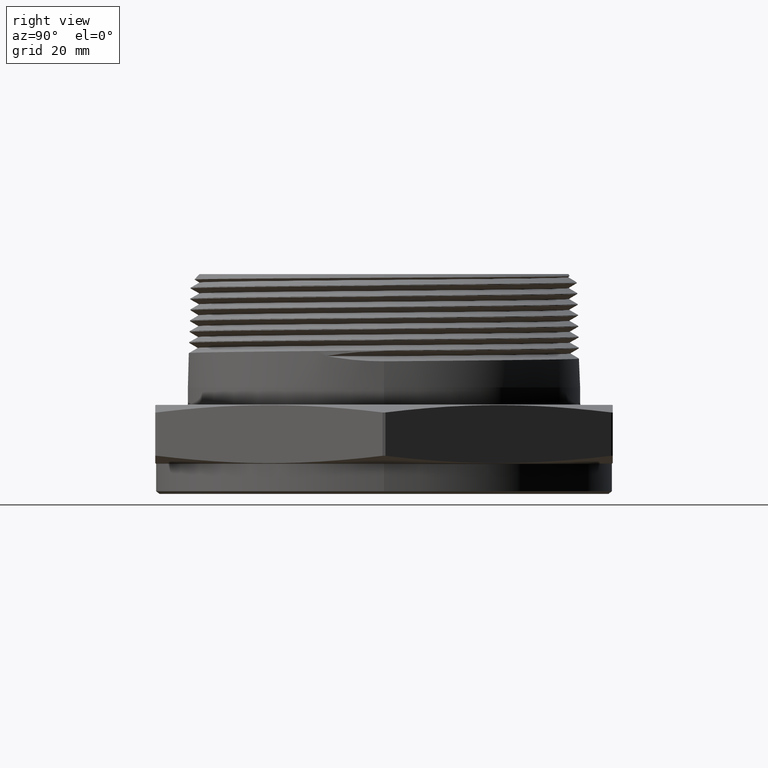
[diagram: clean part render]
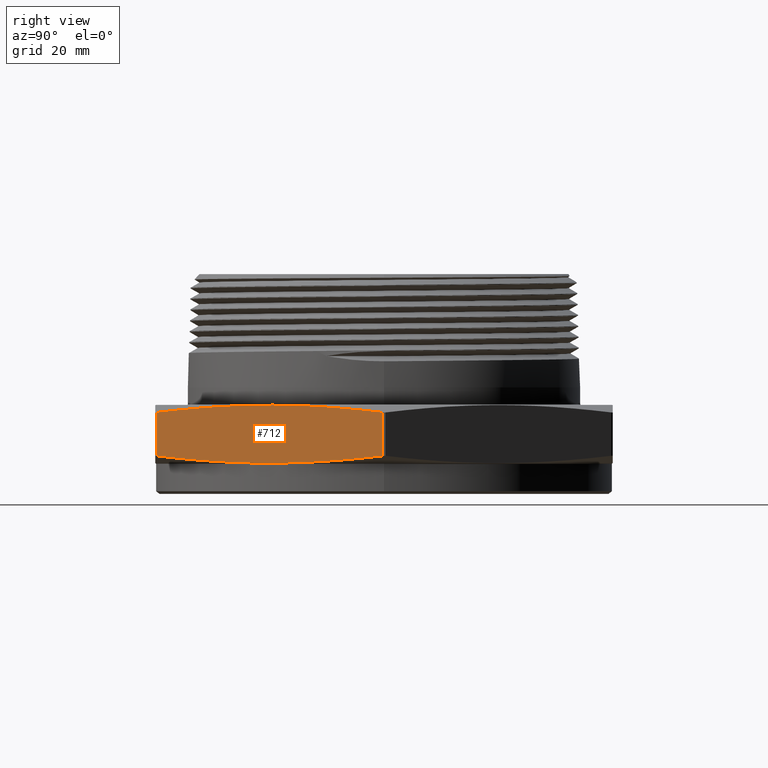
[diagram: same view with one face highlighted and labeled with its STEP entity id]
A machine part, right view. The second image highlights one B-rep face of the part: STEP entity #712.
In plain terms, the highlighted planar face has unit normal (-0.866, 0.5, 0).
Its self-contained STEP definition (entity closure, byte-faithful):
#712 = ADVANCED_FACE ( 'NONE', ( #5570 ), #7933, .F. ) ;
#2063 = B_SPLINE_CURVE_WITH_KNOTS ( 'NONE', 3,
 ( #4517, #4507, #4509, #4519, #4520, #4521, #4522, #4523, #4524 ),
 .UNSPECIFIED., .F., .F.,
 ( 4, 2, 1, 2, 4 ),
 ( 1.900818206269703600E-006, 0.01899404159100099800, 0.03798618236379573000, 0.05697832313659045900, 0.07597046390938518000 ),
 .UNSPECIFIED. ) ;
#3534 = LINE ( 'NONE', #4459, #3536 ) ;
#3536 = VECTOR ( 'NONE', #4457, 39.37007874015748100 ) ;
#3540 = LINE ( 'NONE', #4473, #3544 ) ;
#3544 = VECTOR ( 'NONE', #4469, 39.37007874015748100 ) ;
#3906 = EDGE_CURVE ( 'NONE', #5368, #5345, #3534, .T. ) ;
#3911 = EDGE_CURVE ( 'NONE', #5371, #5352, #3540, .T. ) ;
#3919 = EDGE_CURVE ( 'NONE', #5352, #5368, #7911, .T. ) ;
#3920 = EDGE_CURVE ( 'NONE', #5345, #5371, #2063, .T. ) ;
#4457 = DIRECTION ( 'NONE',  ( -1.224646799147351200E-016, -0.0000000000000000000, -1.000000000000000000 ) ) ;
#4459 = CARTESIAN_POINT ( 'NONE',  ( 1.525594607265067700, -2.607592628463815600, 9.156954490692504800E-017 ) ) ;
#4469 = DIRECTION ( 'NONE',  ( 1.224646799147351200E-016, 0.0000000000000000000, 1.000000000000000000 ) ) ;
#4473 = CARTESIAN_POINT ( 'NONE',  ( 3.021038762603234700, -0.01740737153618432400, -9.156954490692504800E-017 ) ) ;
#4489 = CARTESIAN_POINT ( 'NONE',  ( 2.896418416325054100, -0.2332561429468199800, 0.6099072106565088800 ) ) ;
#4499 = CARTESIAN_POINT ( 'NONE',  ( 2.771798070046873600, -0.4491049143574559200, 0.6311668422512816100 ) ) ;
#4507 = CARTESIAN_POINT ( 'NONE',  ( 1.650214953543247500, -2.391743857053178600, 0.06009278934348995900 ) ) ;
#4508 = CARTESIAN_POINT ( 'NONE',  ( 3.021038762603234700, -0.01740737153618432400, 0.5836831368682157100 ) ) ;
#4509 = CARTESIAN_POINT ( 'NONE',  ( 1.774835299821429000, -2.175895085642543000, 0.03883315774871715800 ) ) ;
#4510 = CARTESIAN_POINT ( 'NONE',  ( 2.522557377490511700, -0.8808024571787272900, 0.6601932896857983800 ) ) ;
#4511 = CARTESIAN_POINT ( 'NONE',  ( 2.273316684934152000, -1.312500000000000000, 0.6755555790808008800 ) ) ;
#4512 = CARTESIAN_POINT ( 'NONE',  ( 2.024075992377788700, -1.744197542821271300, 0.6601932896857984900 ) ) ;
#4513 = CARTESIAN_POINT ( 'NONE',  ( 1.774835299821428700, -2.175895085642543000, 0.6311668422512817200 ) ) ;
#4514 = CARTESIAN_POINT ( 'NONE',  ( 1.650214953543247300, -2.391743857053178200, 0.6099072106565088800 ) ) ;
#4515 = CARTESIAN_POINT ( 'NONE',  ( 1.525594607265067500, -2.607592628463814700, 0.5836831368682159300 ) ) ;
#4517 = CARTESIAN_POINT ( 'NONE',  ( 1.525594607265067700, -2.607592628463815600, 0.08631686313178364700 ) ) ;
#4519 = CARTESIAN_POINT ( 'NONE',  ( 2.024075992377789600, -1.744197542821270800, 0.009806710314200392900 ) ) ;
#4520 = CARTESIAN_POINT ( 'NONE',  ( 2.273316684934150200, -1.312499999999999800, -0.005555579080802172800 ) ) ;
#4521 = CARTESIAN_POINT ( 'NONE',  ( 2.522557377490512600, -0.8808024571787277400, 0.009806710314200330400 ) ) ;
#4522 = CARTESIAN_POINT ( 'NONE',  ( 2.771798070046873200, -0.4491049143574559200, 0.03883315774871704700 ) ) ;
#4523 = CARTESIAN_POINT ( 'NONE',  ( 2.896418416325053700, -0.2332561429468202600, 0.06009278934348966800 ) ) ;
#4524 = CARTESIAN_POINT ( 'NONE',  ( 3.021038762603234700, -0.01740737153618432400, 0.08631686313178289800 ) ) ;
#5345 = VERTEX_POINT ( 'NONE', #6675 ) ;
#5352 = VERTEX_POINT ( 'NONE', #6682 ) ;
#5368 = VERTEX_POINT ( 'NONE', #6698 ) ;
#5371 = VERTEX_POINT ( 'NONE', #6701 ) ;
#5410 = ORIENTED_EDGE ( 'NONE', *, *, #3920, .T. ) ;
#5411 = ORIENTED_EDGE ( 'NONE', *, *, #3911, .T. ) ;
#5412 = ORIENTED_EDGE ( 'NONE', *, *, #3919, .T. ) ;
#5413 = ORIENTED_EDGE ( 'NONE', *, *, #3906, .T. ) ;
#5493 = EDGE_LOOP ( 'NONE', ( #5410, #5411, #5412, #5413 ) ) ;
#5570 = FACE_OUTER_BOUND ( 'NONE', #5493, .T. ) ;
#6675 = CARTESIAN_POINT ( 'NONE',  ( 1.525594607265067700, -2.607592628463815600, 0.08631686313178364700 ) ) ;
#6682 = CARTESIAN_POINT ( 'NONE',  ( 3.021038762603234700, -0.01740737153618432400, 0.5836831368682157100 ) ) ;
#6698 = CARTESIAN_POINT ( 'NONE',  ( 1.525594607265067500, -2.607592628463814700, 0.5836831368682159300 ) ) ;
#6701 = CARTESIAN_POINT ( 'NONE',  ( 3.021038762603234700, -0.01740737153618432400, 0.08631686313178289800 ) ) ;
#7911 = B_SPLINE_CURVE_WITH_KNOTS ( 'NONE', 3,
 ( #4508, #4489, #4499, #4510, #4511, #4512, #4513, #4514, #4515 ),
 .UNSPECIFIED., .F., .F.,
 ( 4, 2, 1, 2, 4 ),
 ( 1.900818206055693700E-006, 0.01899404159100078600, 0.03798618236379552200, 0.05697832313659024300, 0.07597046390938495800 ),
 .UNSPECIFIED. ) ;
#7922 = DIRECTION ( 'NONE',  ( -0.4999999999999998900, -0.8660254037844386000, 0.0000000000000000000 ) ) ;
#7923 = DIRECTION ( 'NONE',  ( -0.8660254037844387100, 0.4999999999999999400, 0.0000000000000000000 ) ) ;
#7932 = CARTESIAN_POINT ( 'NONE',  ( 1.515544456622767200, -2.624999999999999600, 0.6700000000000000400 ) ) ;
#7933 = PLANE ( 'NONE',  #8002 ) ;
#8002 = AXIS2_PLACEMENT_3D ( 'NONE', #7932, #7923, #7922 ) ;